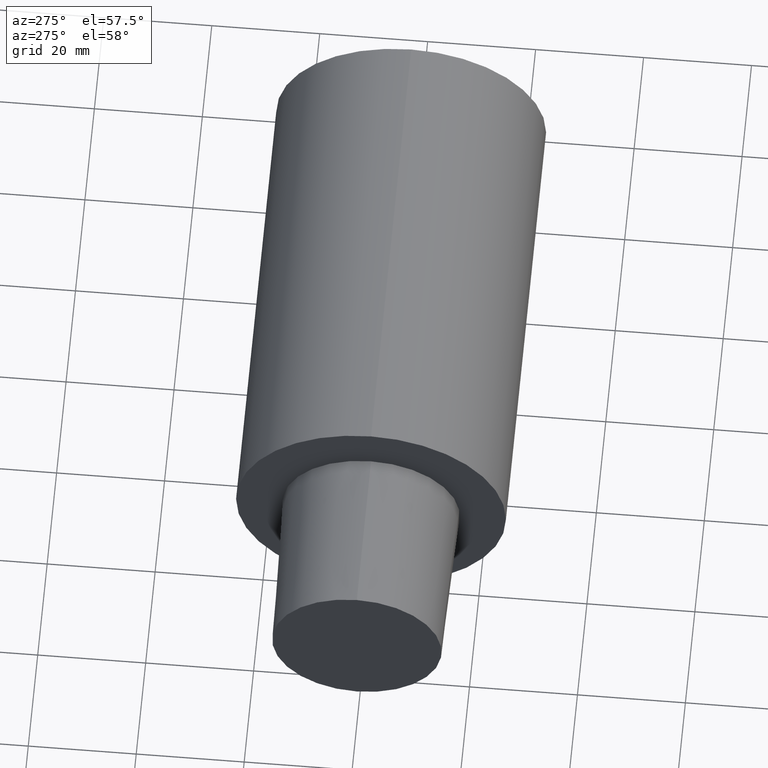
[diagram: clean part render]
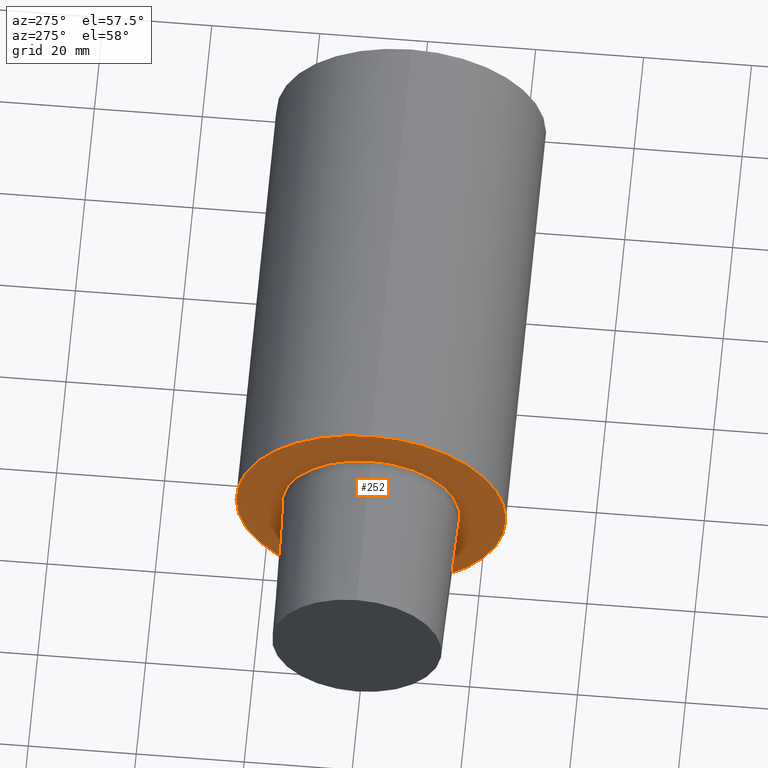
[diagram: same view with one face highlighted and labeled with its STEP entity id]
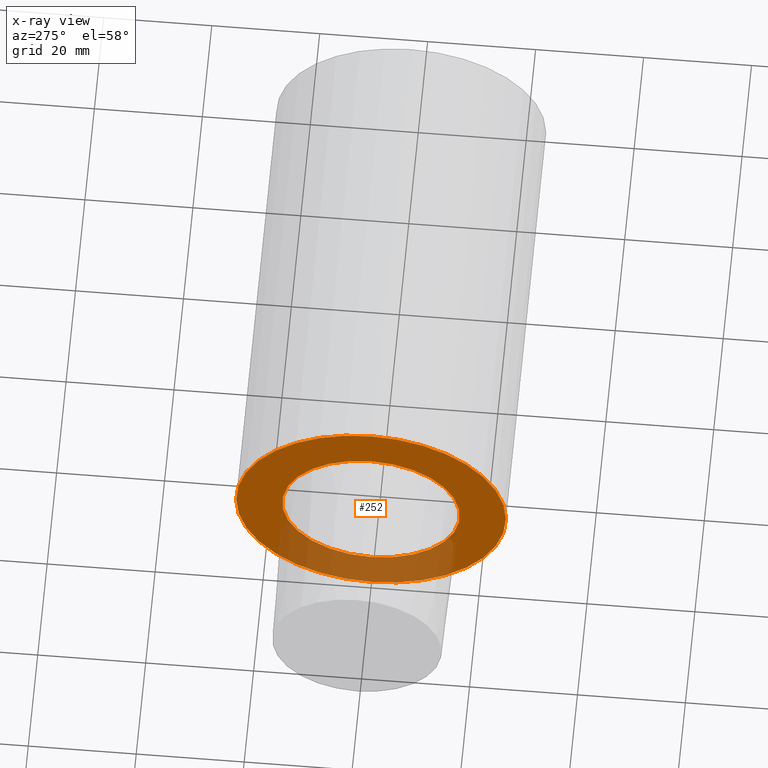
[diagram: x-ray of the same camera — body ghosted, the highlighted face saturated]
A machine part, auxiliary view. The second image highlights one B-rep face of the part: STEP entity #252.
The next image is the same camera in x-ray: the body ghosted, the highlighted face saturated — about 28% of this face is hidden behind the body in this view.
In plain terms, the highlighted planar face has unit normal (1, 0, 0).
Its self-contained STEP definition (entity closure, byte-faithful):
#15 = CIRCLE ( 'NONE', #253, 16.45500658257258664 ) ;
#19 = FACE_OUTER_BOUND ( 'NONE', #49, .T. ) ;
#22 = FACE_BOUND ( 'NONE', #133, .T. ) ;
#24 = ORIENTED_EDGE ( 'NONE', *, *, #80, .F. ) ;
#25 = ORIENTED_EDGE ( 'NONE', *, *, #52, .F. ) ;
#38 = CARTESIAN_POINT ( 'NONE',  ( 0.000000000000000000, 0.000000000000000000, 0.000000000000000000 ) ) ;
#40 = CARTESIAN_POINT ( 'NONE',  ( 0.000000000000000000, 2.015157114129614578E-15, 16.45500658257258664 ) ) ;
#42 = PLANE ( 'NONE',  #130 ) ;
#49 = EDGE_LOOP ( 'NONE', ( #90, #246 ) ) ;
#52 = EDGE_CURVE ( 'NONE', #185, #89, #82, .T. ) ;
#57 = DIRECTION ( 'NONE',  ( -1.000000000000000000, 0.000000000000000000, 0.000000000000000000 ) ) ;
#63 = CIRCLE ( 'NONE', #192, 24.99999997449999967 ) ;
#68 = DIRECTION ( 'NONE',  ( 0.000000000000000000, 0.000000000000000000, 1.000000000000000000 ) ) ;
#71 = VERTEX_POINT ( 'NONE', #166 ) ;
#75 = DIRECTION ( 'NONE',  ( 0.000000000000000000, 0.000000000000000000, 1.000000000000000000 ) ) ;
#77 = EDGE_CURVE ( 'NONE', #202, #71, #142, .T. ) ;
#78 = CARTESIAN_POINT ( 'NONE',  ( 0.000000000000000000, 0.000000000000000000, 0.000000000000000000 ) ) ;
#80 = EDGE_CURVE ( 'NONE', #89, #185, #15, .T. ) ;
#82 = CIRCLE ( 'NONE', #189, 16.45500658257258664 ) ;
#87 = AXIS2_PLACEMENT_3D ( 'NONE', #38, #211, #75 ) ;
#89 = VERTEX_POINT ( 'NONE', #40 ) ;
#90 = ORIENTED_EDGE ( 'NONE', *, *, #95, .T. ) ;
#95 = EDGE_CURVE ( 'NONE', #71, #202, #63, .T. ) ;
#100 = CARTESIAN_POINT ( 'NONE',  ( 0.000000000000000000, 0.000000000000000000, -16.45500658257258664 ) ) ;
#104 = DIRECTION ( 'NONE',  ( 0.000000000000000000, 1.000000000000000000, 0.000000000000000000 ) ) ;
#115 = CARTESIAN_POINT ( 'NONE',  ( 0.000000000000000000, 0.000000000000000000, 0.000000000000000000 ) ) ;
#123 = CARTESIAN_POINT ( 'NONE',  ( 0.000000000000000000, 24.99999997449999967, 0.000000000000000000 ) ) ;
#130 = AXIS2_PLACEMENT_3D ( 'NONE', #123, #217, #104 ) ;
#133 = EDGE_LOOP ( 'NONE', ( #25, #24 ) ) ;
#142 = CIRCLE ( 'NONE', #87, 24.99999997449999967 ) ;
#166 = CARTESIAN_POINT ( 'NONE',  ( 0.000000000000000000, 0.000000000000000000, 24.99999997449999967 ) ) ;
#171 = DIRECTION ( 'NONE',  ( 0.000000000000000000, 0.000000000000000000, 1.000000000000000000 ) ) ;
#183 = CARTESIAN_POINT ( 'NONE',  ( 0.000000000000000000, 0.000000000000000000, 0.000000000000000000 ) ) ;
#185 = VERTEX_POINT ( 'NONE', #100 ) ;
#189 = AXIS2_PLACEMENT_3D ( 'NONE', #183, #243, #68 ) ;
#192 = AXIS2_PLACEMENT_3D ( 'NONE', #115, #228, #197 ) ;
#197 = DIRECTION ( 'NONE',  ( 0.000000000000000000, 0.000000000000000000, 1.000000000000000000 ) ) ;
#202 = VERTEX_POINT ( 'NONE', #254 ) ;
#211 = DIRECTION ( 'NONE',  ( -1.000000000000000000, 0.000000000000000000, 0.000000000000000000 ) ) ;
#217 = DIRECTION ( 'NONE',  ( 1.000000000000000000, 0.000000000000000000, 0.000000000000000000 ) ) ;
#228 = DIRECTION ( 'NONE',  ( -1.000000000000000000, 0.000000000000000000, 0.000000000000000000 ) ) ;
#243 = DIRECTION ( 'NONE',  ( -1.000000000000000000, 0.000000000000000000, 0.000000000000000000 ) ) ;
#246 = ORIENTED_EDGE ( 'NONE', *, *, #77, .T. ) ;
#252 = ADVANCED_FACE ( 'NONE', ( #22, #19 ), #42, .F. ) ;
#253 = AXIS2_PLACEMENT_3D ( 'NONE', #78, #57, #171 ) ;
#254 = CARTESIAN_POINT ( 'NONE',  ( 0.000000000000000000, 3.061616994745535943E-15, -24.99999997449999967 ) ) ;